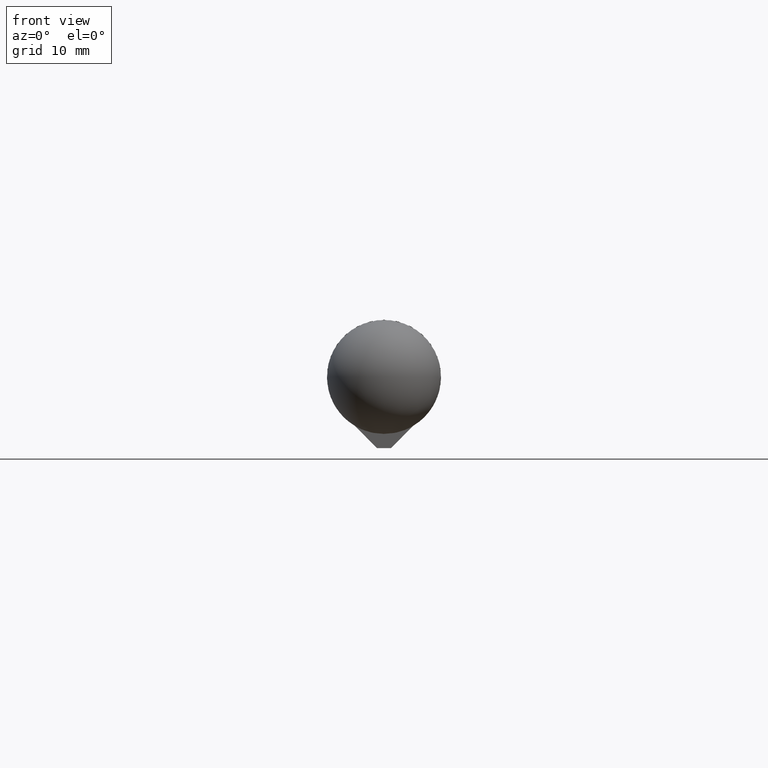
[diagram: clean part render]
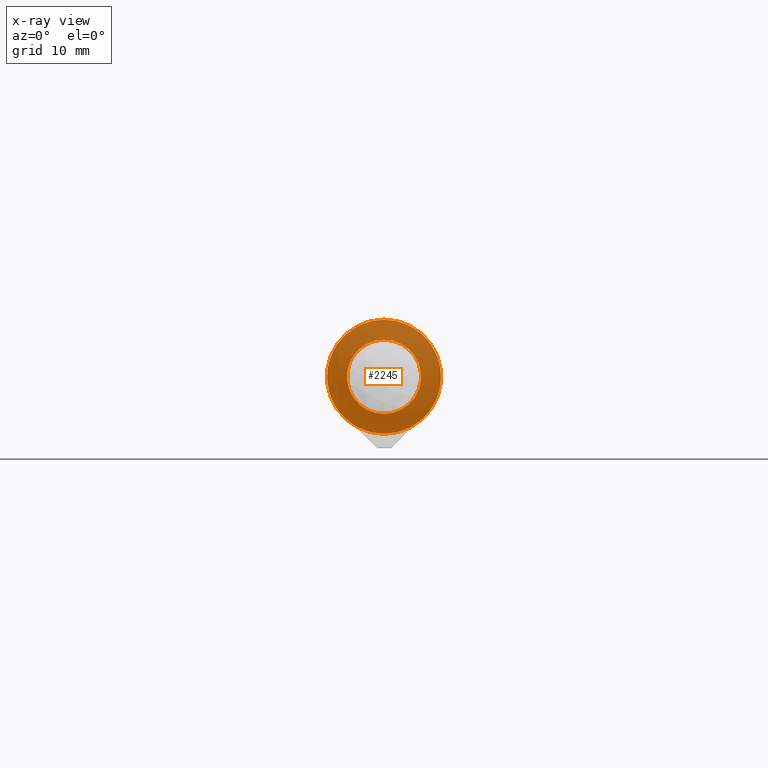
[diagram: x-ray — body ghosted, one internal face saturated and labeled with its STEP entity id]
A machine part, front view, then the same camera in x-ray: the body is ghosted and one INTERNAL B-rep face — a face not visible from any outside direction — is saturated and labeled: STEP entity #2245.
In plain terms, the highlighted planar face has unit normal (0, 1, 0).
Its self-contained STEP definition (entity closure, byte-faithful):
#89 = AXIS2_PLACEMENT_3D ( 'NONE', #10456, #9517, #10412 ) ;
#1064 = DIRECTION ( 'NONE',  ( 0.000000000000000000, 0.000000000000000000, 1.000000000000000000 ) ) ;
#1553 = AXIS2_PLACEMENT_3D ( 'NONE', #7606, #4671, #5667 ) ;
#1821 = EDGE_CURVE ( 'NONE', #9348, #9348, #6031, .T. ) ;
#1922 = VERTEX_POINT ( 'NONE', #2487 ) ;
#2245 = ADVANCED_FACE ( 'NONE', ( #9596, #4034 ), #10575, .T. ) ;
#2487 = CARTESIAN_POINT ( 'NONE',  ( 0.000000000000000000, 2.500000000000000000, 8.000000000000000000 ) ) ;
#3070 = DIRECTION ( 'NONE',  ( 0.000000000000000000, 1.000000000000000000, 0.000000000000000000 ) ) ;
#4034 = FACE_BOUND ( 'NONE', #11978, .T. ) ;
#4671 = DIRECTION ( 'NONE',  ( 0.000000000000000000, 1.000000000000000000, 0.000000000000000000 ) ) ;
#5667 = DIRECTION ( 'NONE',  ( 0.000000000000000000, -0.000000000000000000, 1.000000000000000000 ) ) ;
#6031 = CIRCLE ( 'NONE', #11783, 5.200000000000000178 ) ;
#6201 = EDGE_CURVE ( 'NONE', #1922, #1922, #7046, .T. ) ;
#7046 = CIRCLE ( 'NONE', #89, 8.000000000000000000 ) ;
#7606 = CARTESIAN_POINT ( 'NONE',  ( 0.000000000000000000, 2.500000000000000000, 0.000000000000000000 ) ) ;
#8387 = ORIENTED_EDGE ( 'NONE', *, *, #6201, .T. ) ;
#9324 = ORIENTED_EDGE ( 'NONE', *, *, #1821, .F. ) ;
#9348 = VERTEX_POINT ( 'NONE', #12344 ) ;
#9517 = DIRECTION ( 'NONE',  ( 0.000000000000000000, 1.000000000000000000, 0.000000000000000000 ) ) ;
#9596 = FACE_OUTER_BOUND ( 'NONE', #10144, .T. ) ;
#10144 = EDGE_LOOP ( 'NONE', ( #8387 ) ) ;
#10412 = DIRECTION ( 'NONE',  ( 0.000000000000000000, 0.000000000000000000, 1.000000000000000000 ) ) ;
#10456 = CARTESIAN_POINT ( 'NONE',  ( 0.000000000000000000, 2.500000000000000000, 0.000000000000000000 ) ) ;
#10575 = PLANE ( 'NONE',  #1553 ) ;
#11010 = CARTESIAN_POINT ( 'NONE',  ( 0.000000000000000000, 2.500000000000000000, 0.000000000000000000 ) ) ;
#11783 = AXIS2_PLACEMENT_3D ( 'NONE', #11010, #3070, #1064 ) ;
#11978 = EDGE_LOOP ( 'NONE', ( #9324 ) ) ;
#12344 = CARTESIAN_POINT ( 'NONE',  ( 0.000000000000000000, 2.500000000000000000, 5.200000000000000178 ) ) ;